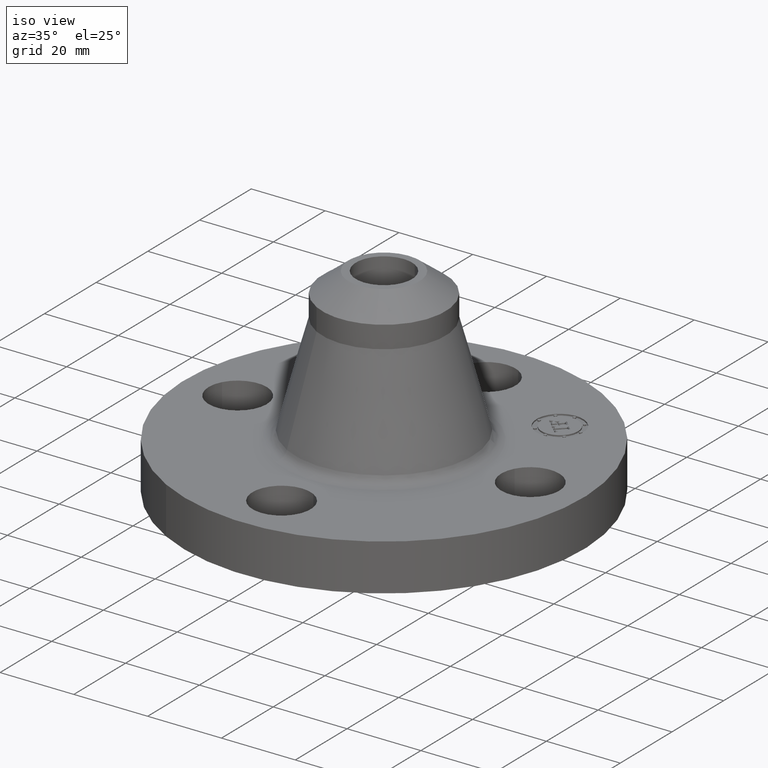
[diagram: clean part render]
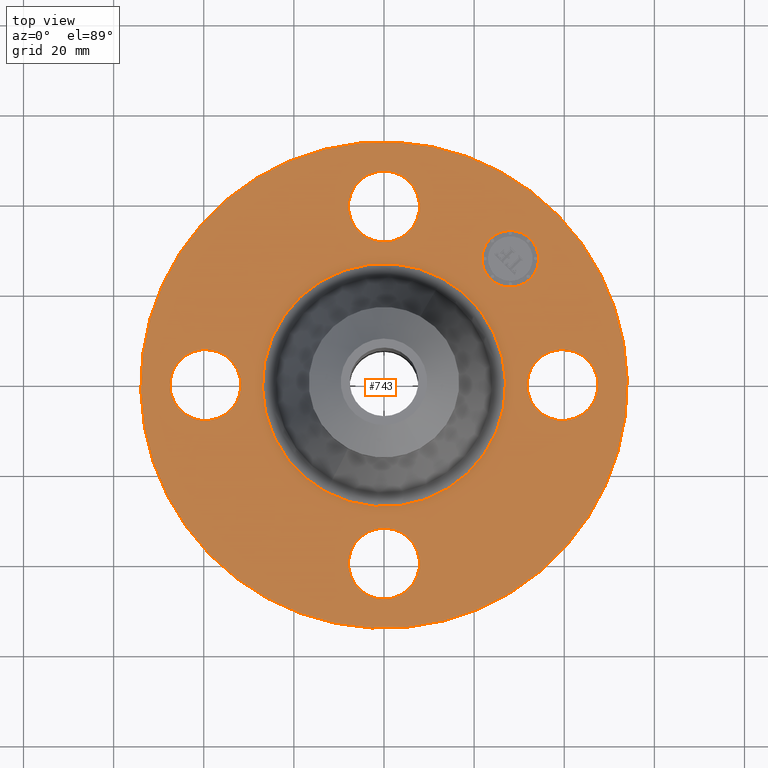
[diagram: tour spotlight — one face highlighted and labeled with its STEP entity id]
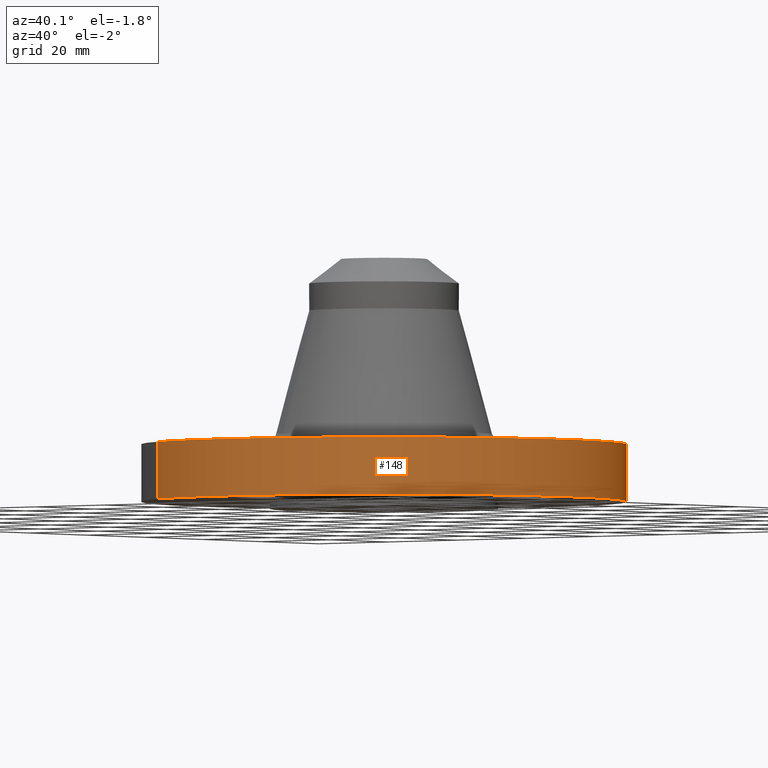
[diagram: tour spotlight — one face highlighted and labeled with its STEP entity id]
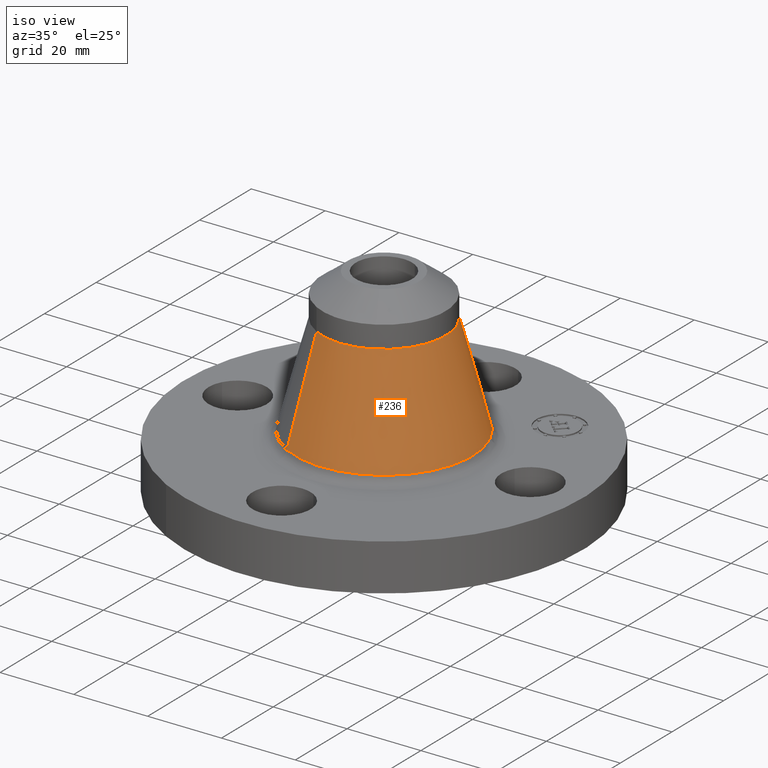
[diagram: tour spotlight — one face highlighted and labeled with its STEP entity id]
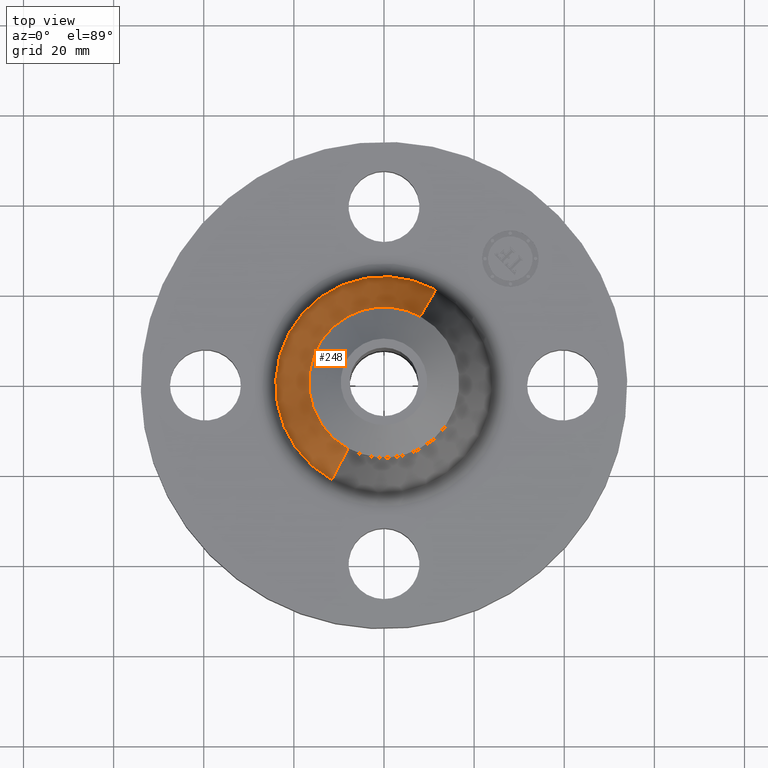
[diagram: tour spotlight — one face highlighted and labeled with its STEP entity id]
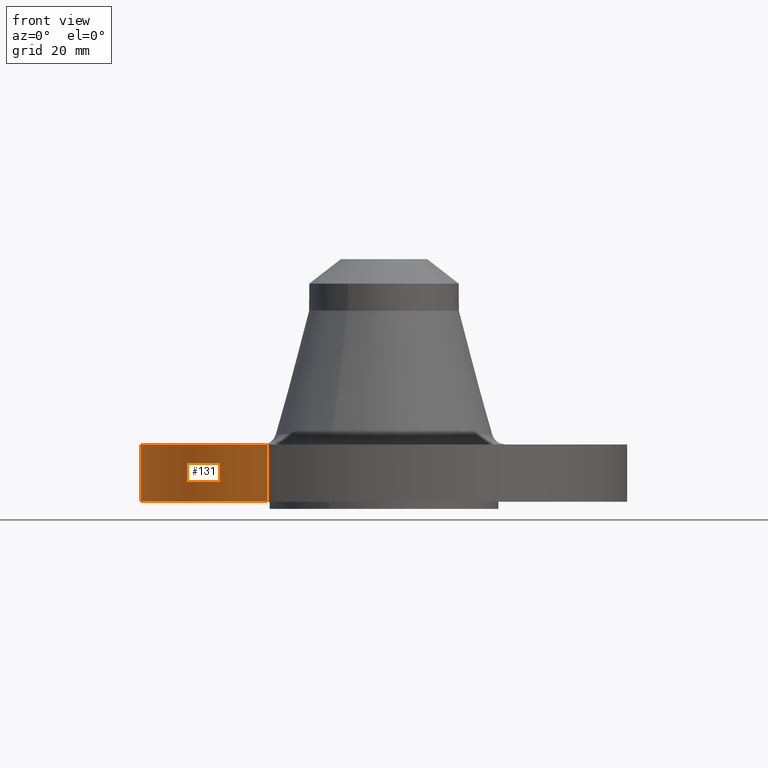
[diagram: tour spotlight — one face highlighted and labeled with its STEP entity id]
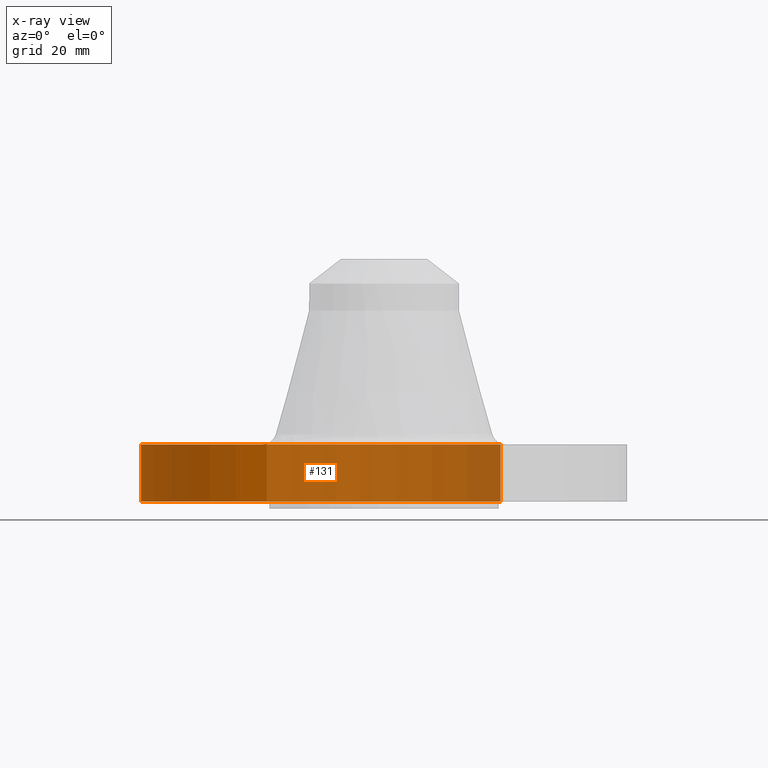
[diagram: x-ray of the same camera — body ghosted, this tour face saturated]
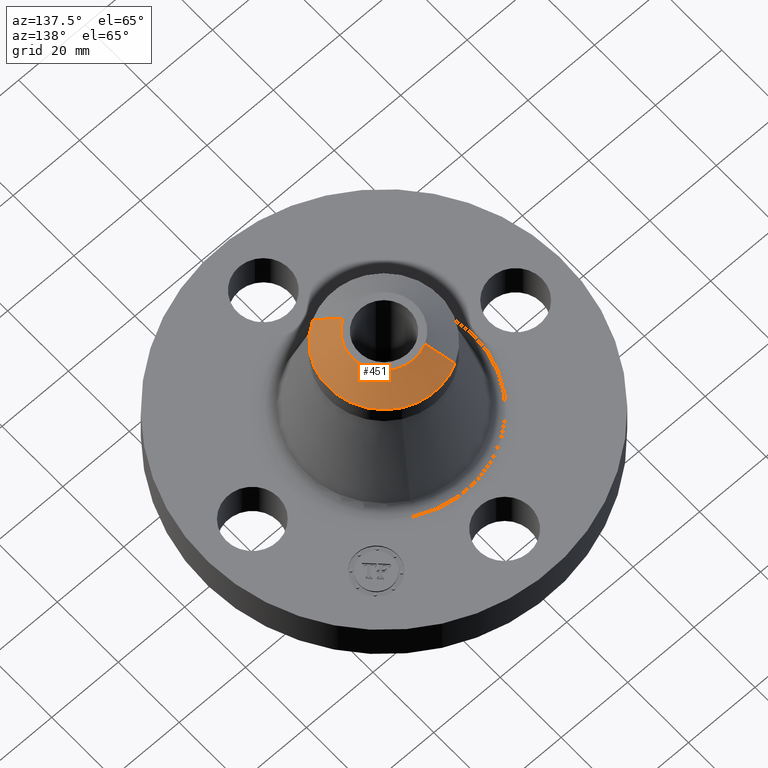
[diagram: tour spotlight — one face highlighted and labeled with its STEP entity id]
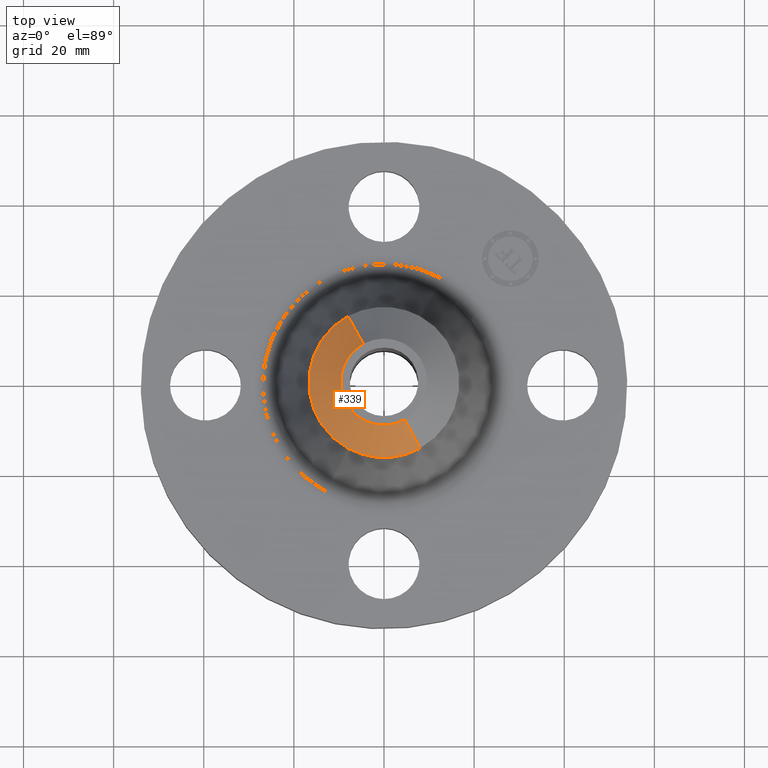
[diagram: tour spotlight — one face highlighted and labeled with its STEP entity id]
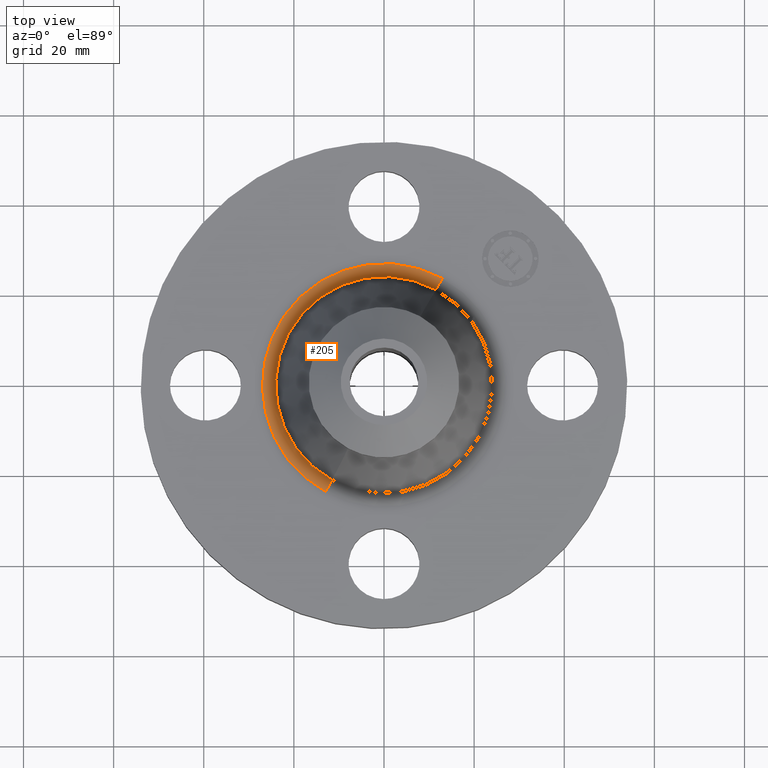
[diagram: tour spotlight — one face highlighted and labeled with its STEP entity id]
A machine part: a face-by-face anatomy tour. The part has 411 B-rep faces; the first image is the clean iso view, then the 8 largest visible faces are spotlighted one at a time (largest first), each with its STEP entity span.

Face 1 — top view, entity #743. In plain terms, the highlighted planar face has unit normal (0, 0, -1).
Definition (entity closure, byte-faithful):
#65=AXIS2_PLACEMENT_3D('Circle Axis2P3D',#63,#64,$) ;
#82=AXIS2_PLACEMENT_3D('Circle Axis2P3D',#80,#81,$) ;
#115=AXIS2_PLACEMENT_3D('Circle Axis2P3D',#113,#114,$) ;
#139=AXIS2_PLACEMENT_3D('Circle Axis2P3D',#137,#138,$) ;
#156=AXIS2_PLACEMENT_3D('Circle Axis2P3D',#154,#155,$) ;
#191=AXIS2_PLACEMENT_3D('Circle Axis2P3D',#189,#190,$) ;
#588=AXIS2_PLACEMENT_3D('Circle Axis2P3D',#586,#587,$) ;
#600=AXIS2_PLACEMENT_3D('Circle Axis2P3D',#598,#599,$) ;
#631=AXIS2_PLACEMENT_3D('Circle Axis2P3D',#629,#630,$) ;
#643=AXIS2_PLACEMENT_3D('Circle Axis2P3D',#641,#642,$) ;
#674=AXIS2_PLACEMENT_3D('Circle Axis2P3D',#672,#673,$) ;
#686=AXIS2_PLACEMENT_3D('Circle Axis2P3D',#684,#685,$) ;
#699=AXIS2_PLACEMENT_3D('Plane Axis2P3D',#696,#697,#698) ;
#727=AXIS2_PLACEMENT_3D('Circle Axis2P3D',#725,#726,$) ;
#736=AXIS2_PLACEMENT_3D('Circle Axis2P3D',#734,#735,$) ;
#46=CARTESIAN_POINT('Vertex',(1.28794940582,0.148621916968,0.500000000002)) ;
#60=CARTESIAN_POINT('Vertex',(1.83205059419,-0.148621916968,0.500000000002)) ;
#63=CARTESIAN_POINT('Axis2P3D Location',(1.56000000001,0.,0.500000000002)) ;
#80=CARTESIAN_POINT('Axis2P3D Location',(1.56000000001,0.,0.500000000002)) ;
#110=CARTESIAN_POINT('Vertex',(-1.01877926954,-1.86486294402,0.500000000002)) ;
#113=CARTESIAN_POINT('Axis2P3D Location',(0.,0.,0.500000000002)) ;
#117=CARTESIAN_POINT('Vertex',(1.01877926954,1.86486294402,0.500000000002)) ;
#137=CARTESIAN_POINT('Axis2P3D Location',(0.,0.,0.500000000002)) ;
#154=CARTESIAN_POINT('Axis2P3D Location',(0.,0.,0.500000000002)) ;
#158=CARTESIAN_POINT('Vertex',(0.509219481615,0.932120008753,0.500000000002)) ;
#160=CARTESIAN_POINT('Vertex',(-0.509219481615,-0.932120008753,0.500000000002)) ;
#189=CARTESIAN_POINT('Axis2P3D Location',(0.,0.,0.500000000002)) ;
#576=CARTESIAN_POINT('Vertex',(-0.148621916968,1.28794940582,0.500000000002)) ;
#583=CARTESIAN_POINT('Vertex',(0.148621916968,1.83205059419,0.500000000002)) ;
#586=CARTESIAN_POINT('Axis2P3D Location',(-2.86567351002E-016,1.56000000001,0.500000000002)) ;
#598=CARTESIAN_POINT('Axis2P3D Location',(-2.86567351002E-016,1.56000000001,0.500000000002)) ;
#619=CARTESIAN_POINT('Vertex',(-1.28794940582,-0.148621916968,0.500000000002)) ;
#626=CARTESIAN_POINT('Vertex',(-1.83205059419,0.148621916968,0.500000000002)) ;
#629=CARTESIAN_POINT('Axis2P3D Location',(-1.56000000001,-1.91044900668E-016,0.500000000002)) ;
#641=CARTESIAN_POINT('Axis2P3D Location',(-1.56000000001,-1.91044900668E-016,0.500000000002)) ;
#662=CARTESIAN_POINT('Vertex',(0.148621916968,-1.28794940582,0.500000000002)) ;
#669=CARTESIAN_POINT('Vertex',(-0.148621916968,-1.83205059419,0.500000000002)) ;
#672=CARTESIAN_POINT('Axis2P3D Location',(-1.84218784217E-016,-1.56000000001,0.500000000002)) ;
#684=CARTESIAN_POINT('Axis2P3D Location',(-1.84218784217E-016,-1.56000000001,0.500000000002)) ;
#696=CARTESIAN_POINT('Axis2P3D Location',(0.,2.12500000001,0.500000000002)) ;
#725=CARTESIAN_POINT('Axis2P3D Location',(1.10308657866,1.10308657866,0.500000000002)) ;
#729=CARTESIAN_POINT('Vertex',(0.928077650311,1.278095507,0.500000000002)) ;
#731=CARTESIAN_POINT('Vertex',(1.278095507,0.928077650311,0.500000000002)) ;
#734=CARTESIAN_POINT('Axis2P3D Location',(1.10308657866,1.10308657866,0.500000000002)) ;
#64=DIRECTION('Axis2P3D Direction',(0.,-0.,-0.0393700787402)) ;
#81=DIRECTION('Axis2P3D Direction',(0.,-0.,-0.0393700787402)) ;
#114=DIRECTION('Axis2P3D Direction',(0.,0.,-0.0393700787402)) ;
#138=DIRECTION('Axis2P3D Direction',(0.,0.,-0.0393700787402)) ;
#155=DIRECTION('Axis2P3D Direction',(0.,0.,-0.0393700787402)) ;
#190=DIRECTION('Axis2P3D Direction',(0.,0.,-0.0393700787402)) ;
#587=DIRECTION('Axis2P3D Direction',(0.,0.,-0.0393700787402)) ;
#599=DIRECTION('Axis2P3D Direction',(0.,0.,-0.0393700787402)) ;
#630=DIRECTION('Axis2P3D Direction',(-0.,0.,-0.0393700787402)) ;
#642=DIRECTION('Axis2P3D Direction',(-0.,0.,-0.0393700787402)) ;
#673=DIRECTION('Axis2P3D Direction',(0.,-0.,-0.0393700787402)) ;
#685=DIRECTION('Axis2P3D Direction',(0.,-0.,-0.0393700787402)) ;
#697=DIRECTION('Axis2P3D Direction',(0.,0.,-0.0393700787402)) ;
#698=DIRECTION('Axis2P3D XDirection',(0.0393700787402,0.,0.)) ;
#726=DIRECTION('Axis2P3D Direction',(0.,0.,-0.0393700787402)) ;
#735=DIRECTION('Axis2P3D Direction',(0.,0.,-0.0393700787402)) ;
#702=ORIENTED_EDGE('',*,*,#141,.F.) ;
#703=ORIENTED_EDGE('',*,*,#119,.F.) ;
#706=ORIENTED_EDGE('',*,*,#67,.T.) ;
#707=ORIENTED_EDGE('',*,*,#84,.T.) ;
#710=ORIENTED_EDGE('',*,*,#193,.T.) ;
#711=ORIENTED_EDGE('',*,*,#162,.T.) ;
#714=ORIENTED_EDGE('',*,*,#688,.T.) ;
#715=ORIENTED_EDGE('',*,*,#676,.T.) ;
#718=ORIENTED_EDGE('',*,*,#645,.T.) ;
#719=ORIENTED_EDGE('',*,*,#633,.T.) ;
#722=ORIENTED_EDGE('',*,*,#602,.T.) ;
#723=ORIENTED_EDGE('',*,*,#590,.T.) ;
#740=ORIENTED_EDGE('',*,*,#733,.T.) ;
#741=ORIENTED_EDGE('',*,*,#738,.T.) ;
#708=FACE_BOUND('',#705,.T.) ;
#712=FACE_BOUND('',#709,.T.) ;
#716=FACE_BOUND('',#713,.T.) ;
#720=FACE_BOUND('',#717,.T.) ;
#724=FACE_BOUND('',#721,.T.) ;
#742=FACE_BOUND('',#739,.T.) ;
#743=ADVANCED_FACE('PartBody',(#704,#708,#712,#716,#720,#724,#742),#700,.F.) ;
#66=CIRCLE('generated circle',#65,0.310000000001) ;
#83=CIRCLE('generated circle',#82,0.310000000001) ;
#116=CIRCLE('generated circle',#115,2.12500000001) ;
#140=CIRCLE('generated circle',#139,2.12500000001) ;
#157=CIRCLE('generated circle',#156,1.06214508951) ;
#192=CIRCLE('generated circle',#191,1.06214508951) ;
#589=CIRCLE('generated circle',#588,0.310000000001) ;
#601=CIRCLE('generated circle',#600,0.310000000001) ;
#632=CIRCLE('generated circle',#631,0.310000000001) ;
#644=CIRCLE('generated circle',#643,0.310000000001) ;
#675=CIRCLE('generated circle',#674,0.310000000001) ;
#687=CIRCLE('generated circle',#686,0.310000000001) ;
#728=CIRCLE('generated circle',#727,0.247500000001) ;
#737=CIRCLE('generated circle',#736,0.247500000001) ;
#67=EDGE_CURVE('',#47,#61,#66,.T.) ;
#84=EDGE_CURVE('',#61,#47,#83,.T.) ;
#119=EDGE_CURVE('',#111,#118,#116,.T.) ;
#141=EDGE_CURVE('',#118,#111,#140,.T.) ;
#162=EDGE_CURVE('',#159,#161,#157,.T.) ;
#193=EDGE_CURVE('',#161,#159,#192,.T.) ;
#590=EDGE_CURVE('',#577,#584,#589,.T.) ;
#602=EDGE_CURVE('',#584,#577,#601,.T.) ;
#633=EDGE_CURVE('',#620,#627,#632,.T.) ;
#645=EDGE_CURVE('',#627,#620,#644,.T.) ;
#676=EDGE_CURVE('',#663,#670,#675,.T.) ;
#688=EDGE_CURVE('',#670,#663,#687,.T.) ;
#733=EDGE_CURVE('',#730,#732,#728,.T.) ;
#738=EDGE_CURVE('',#732,#730,#737,.T.) ;
#701=EDGE_LOOP('',(#702,#703)) ;
#705=EDGE_LOOP('',(#706,#707)) ;
#709=EDGE_LOOP('',(#710,#711)) ;
#713=EDGE_LOOP('',(#714,#715)) ;
#717=EDGE_LOOP('',(#718,#719)) ;
#721=EDGE_LOOP('',(#722,#723)) ;
#739=EDGE_LOOP('',(#740,#741)) ;
#704=FACE_OUTER_BOUND('',#701,.T.) ;
#700=PLANE('',#699) ;
#47=VERTEX_POINT('',#46) ;
#61=VERTEX_POINT('',#60) ;
#111=VERTEX_POINT('',#110) ;
#118=VERTEX_POINT('',#117) ;
#159=VERTEX_POINT('',#158) ;
#161=VERTEX_POINT('',#160) ;
#577=VERTEX_POINT('',#576) ;
#584=VERTEX_POINT('',#583) ;
#620=VERTEX_POINT('',#619) ;
#627=VERTEX_POINT('',#626) ;
#663=VERTEX_POINT('',#662) ;
#670=VERTEX_POINT('',#669) ;
#730=VERTEX_POINT('',#729) ;
#732=VERTEX_POINT('',#731) ;

Face 2 — auxiliary view, entity #148. In plain terms, the highlighted cylindrical surface (partial cylindrical patch) has radius 53.975 mm, axis along (0, 0, -1).
Definition (entity closure, byte-faithful):
#95=AXIS2_PLACEMENT_3D('Cylinder Axis2P3D',#92,#93,#94) ;
#134=AXIS2_PLACEMENT_3D('Circle Axis2P3D',#132,#133,$) ;
#139=AXIS2_PLACEMENT_3D('Circle Axis2P3D',#137,#138,$) ;
#92=CARTESIAN_POINT('Axis2P3D Location',(0.,0.,1.02875)) ;
#101=CARTESIAN_POINT('Vertex',(-1.01877926954,-1.86486294402,1.39870617276E-016)) ;
#103=CARTESIAN_POINT('Vertex',(1.01877926954,1.86486294402,1.39870617276E-016)) ;
#106=CARTESIAN_POINT('Line Origine',(-1.01877926954,-1.86486294402,0.250000000001)) ;
#110=CARTESIAN_POINT('Vertex',(-1.01877926954,-1.86486294402,0.500000000002)) ;
#117=CARTESIAN_POINT('Vertex',(1.01877926954,1.86486294402,0.500000000002)) ;
#120=CARTESIAN_POINT('Line Origine',(1.01877926954,1.86486294402,0.250000000001)) ;
#132=CARTESIAN_POINT('Axis2P3D Location',(0.,0.,1.39870617276E-016)) ;
#137=CARTESIAN_POINT('Axis2P3D Location',(0.,0.,0.500000000002)) ;
#93=DIRECTION('Axis2P3D Direction',(0.,0.,-0.0393700787402)) ;
#94=DIRECTION('Axis2P3D XDirection',(0.0188750212049,0.0345504945626,0.)) ;
#107=DIRECTION('Vector Direction',(0.,0.,-0.0393700787402)) ;
#121=DIRECTION('Vector Direction',(0.,0.,-0.0393700787402)) ;
#133=DIRECTION('Axis2P3D Direction',(0.,0.,-0.0393700787402)) ;
#138=DIRECTION('Axis2P3D Direction',(0.,0.,-0.0393700787402)) ;
#108=VECTOR('Line Direction',#107,0.0393700787402) ;
#122=VECTOR('Line Direction',#121,0.0393700787402) ;
#143=ORIENTED_EDGE('',*,*,#136,.F.) ;
#144=ORIENTED_EDGE('',*,*,#124,.T.) ;
#145=ORIENTED_EDGE('',*,*,#141,.T.) ;
#146=ORIENTED_EDGE('',*,*,#112,.F.) ;
#148=ADVANCED_FACE('PartBody',(#147),#96,.T.) ;
#135=CIRCLE('generated circle',#134,2.12500000001) ;
#140=CIRCLE('generated circle',#139,2.12500000001) ;
#96=CYLINDRICAL_SURFACE('generated cylinder',#95,2.12500000001) ;
#112=EDGE_CURVE('',#102,#111,#109,.F.) ;
#124=EDGE_CURVE('',#104,#118,#123,.F.) ;
#136=EDGE_CURVE('',#104,#102,#135,.T.) ;
#141=EDGE_CURVE('',#118,#111,#140,.T.) ;
#142=EDGE_LOOP('',(#143,#144,#145,#146)) ;
#147=FACE_OUTER_BOUND('',#142,.T.) ;
#109=LINE('Line',#106,#108) ;
#123=LINE('Line',#120,#122) ;
#102=VERTEX_POINT('',#101) ;
#104=VERTEX_POINT('',#103) ;
#111=VERTEX_POINT('',#110) ;
#118=VERTEX_POINT('',#117) ;

Face 3 — iso view, entity #236. In plain terms, the highlighted conical surface has half-angle 14.96 deg.
Definition (entity closure, byte-faithful):
#172=AXIS2_PLACEMENT_3D('Circle Axis2P3D',#170,#171,$) ;
#209=AXIS2_PLACEMENT_3D('Cone Axis2P3D',#206,#207,#208) ;
#220=AXIS2_PLACEMENT_3D('Circle Axis2P3D',#218,#219,$) ;
#167=CARTESIAN_POINT('Vertex',(0.45363847054,0.83037965042,0.589021770642)) ;
#170=CARTESIAN_POINT('Axis2P3D Location',(0.,0.,0.589021770642)) ;
#174=CARTESIAN_POINT('Vertex',(-0.45363847054,-0.83037965042,0.589021770642)) ;
#206=CARTESIAN_POINT('Axis2P3D Location',(0.,0.,1.66949591374)) ;
#211=CARTESIAN_POINT('Line Origine',(0.384430381087,0.703695092433,1.12925884219)) ;
#215=CARTESIAN_POINT('Vertex',(0.315222291634,0.577010534445,1.66949591374)) ;
#218=CARTESIAN_POINT('Axis2P3D Location',(0.,0.,1.66949591374)) ;
#222=CARTESIAN_POINT('Vertex',(-0.315222291634,-0.577010534445,1.66949591374)) ;
#225=CARTESIAN_POINT('Line Origine',(-0.384430381087,-0.703695092433,1.12925884219)) ;
#171=DIRECTION('Axis2P3D Direction',(0.,0.,-0.0393700787402)) ;
#207=DIRECTION('Axis2P3D Direction',(0.,0.,-0.0393700787402)) ;
#208=DIRECTION('Axis2P3D XDirection',(-0.0188750212049,-0.0345504945626,0.)) ;
#212=DIRECTION('Vector Direction',(0.00487262280049,0.00891927620883,-0.0380356038333)) ;
#219=DIRECTION('Axis2P3D Direction',(0.,0.,-0.0393700787402)) ;
#226=DIRECTION('Vector Direction',(-0.00487262280049,-0.00891927620883,-0.0380356038333)) ;
#213=VECTOR('Line Direction',#212,0.0393700787402) ;
#227=VECTOR('Line Direction',#226,0.0393700787402) ;
#231=ORIENTED_EDGE('',*,*,#176,.F.) ;
#232=ORIENTED_EDGE('',*,*,#217,.T.) ;
#233=ORIENTED_EDGE('',*,*,#224,.T.) ;
#234=ORIENTED_EDGE('',*,*,#229,.F.) ;
#236=ADVANCED_FACE('PartBody',(#235),#210,.T.) ;
#173=CIRCLE('generated circle',#172,0.946212569028) ;
#221=CIRCLE('generated circle',#220,0.657500000003) ;
#210=CONICAL_SURFACE('Cone',#209,0.657500000003,0.26110878394) ;
#176=EDGE_CURVE('',#168,#175,#173,.T.) ;
#217=EDGE_CURVE('',#168,#216,#214,.F.) ;
#224=EDGE_CURVE('',#216,#223,#221,.T.) ;
#229=EDGE_CURVE('',#175,#223,#228,.F.) ;
#230=EDGE_LOOP('',(#231,#232,#233,#234)) ;
#235=FACE_OUTER_BOUND('',#230,.T.) ;
#214=LINE('Line',#211,#213) ;
#228=LINE('Line',#225,#227) ;
#168=VERTEX_POINT('',#167) ;
#175=VERTEX_POINT('',#174) ;
#216=VERTEX_POINT('',#215) ;
#223=VERTEX_POINT('',#222) ;

Face 4 — top view, entity #248. In plain terms, the highlighted conical surface has half-angle 14.96 deg.
Definition (entity closure, byte-faithful):
#196=AXIS2_PLACEMENT_3D('Circle Axis2P3D',#194,#195,$) ;
#209=AXIS2_PLACEMENT_3D('Cone Axis2P3D',#206,#207,#208) ;
#239=AXIS2_PLACEMENT_3D('Circle Axis2P3D',#237,#238,$) ;
#167=CARTESIAN_POINT('Vertex',(0.45363847054,0.83037965042,0.589021770642)) ;
#174=CARTESIAN_POINT('Vertex',(-0.45363847054,-0.83037965042,0.589021770642)) ;
#194=CARTESIAN_POINT('Axis2P3D Location',(0.,0.,0.589021770642)) ;
#206=CARTESIAN_POINT('Axis2P3D Location',(0.,0.,1.66949591374)) ;
#211=CARTESIAN_POINT('Line Origine',(0.384430381087,0.703695092433,1.12925884219)) ;
#215=CARTESIAN_POINT('Vertex',(0.315222291634,0.577010534445,1.66949591374)) ;
#222=CARTESIAN_POINT('Vertex',(-0.315222291634,-0.577010534445,1.66949591374)) ;
#225=CARTESIAN_POINT('Line Origine',(-0.384430381087,-0.703695092433,1.12925884219)) ;
#237=CARTESIAN_POINT('Axis2P3D Location',(0.,0.,1.66949591374)) ;
#195=DIRECTION('Axis2P3D Direction',(0.,0.,-0.0393700787402)) ;
#207=DIRECTION('Axis2P3D Direction',(0.,0.,-0.0393700787402)) ;
#208=DIRECTION('Axis2P3D XDirection',(-0.0188750212049,-0.0345504945626,0.)) ;
#212=DIRECTION('Vector Direction',(0.00487262280049,0.00891927620883,-0.0380356038333)) ;
#226=DIRECTION('Vector Direction',(-0.00487262280049,-0.00891927620883,-0.0380356038333)) ;
#238=DIRECTION('Axis2P3D Direction',(0.,0.,-0.0393700787402)) ;
#213=VECTOR('Line Direction',#212,0.0393700787402) ;
#227=VECTOR('Line Direction',#226,0.0393700787402) ;
#243=ORIENTED_EDGE('',*,*,#198,.F.) ;
#244=ORIENTED_EDGE('',*,*,#229,.T.) ;
#245=ORIENTED_EDGE('',*,*,#241,.T.) ;
#246=ORIENTED_EDGE('',*,*,#217,.F.) ;
#248=ADVANCED_FACE('PartBody',(#247),#210,.T.) ;
#197=CIRCLE('generated circle',#196,0.946212569028) ;
#240=CIRCLE('generated circle',#239,0.657500000003) ;
#210=CONICAL_SURFACE('Cone',#209,0.657500000003,0.26110878394) ;
#198=EDGE_CURVE('',#175,#168,#197,.T.) ;
#217=EDGE_CURVE('',#168,#216,#214,.F.) ;
#229=EDGE_CURVE('',#175,#223,#228,.F.) ;
#241=EDGE_CURVE('',#223,#216,#240,.T.) ;
#242=EDGE_LOOP('',(#243,#244,#245,#246)) ;
#247=FACE_OUTER_BOUND('',#242,.T.) ;
#214=LINE('Line',#211,#213) ;
#228=LINE('Line',#225,#227) ;
#168=VERTEX_POINT('',#167) ;
#175=VERTEX_POINT('',#174) ;
#216=VERTEX_POINT('',#215) ;
#223=VERTEX_POINT('',#222) ;

Face 5 — front view, entity #131. An x-ray twin of the same camera follows (body ghosted, this face saturated) — the face is partly hidden behind the body. In plain terms, the highlighted cylindrical surface (partial cylindrical patch) has radius 53.975 mm, axis along (0, 0, -1).
Definition (entity closure, byte-faithful):
#95=AXIS2_PLACEMENT_3D('Cylinder Axis2P3D',#92,#93,#94) ;
#99=AXIS2_PLACEMENT_3D('Circle Axis2P3D',#97,#98,$) ;
#115=AXIS2_PLACEMENT_3D('Circle Axis2P3D',#113,#114,$) ;
#92=CARTESIAN_POINT('Axis2P3D Location',(0.,0.,1.02875)) ;
#97=CARTESIAN_POINT('Axis2P3D Location',(0.,0.,1.39870617276E-016)) ;
#101=CARTESIAN_POINT('Vertex',(-1.01877926954,-1.86486294402,1.39870617276E-016)) ;
#103=CARTESIAN_POINT('Vertex',(1.01877926954,1.86486294402,1.39870617276E-016)) ;
#106=CARTESIAN_POINT('Line Origine',(-1.01877926954,-1.86486294402,0.250000000001)) ;
#110=CARTESIAN_POINT('Vertex',(-1.01877926954,-1.86486294402,0.500000000002)) ;
#113=CARTESIAN_POINT('Axis2P3D Location',(0.,0.,0.500000000002)) ;
#117=CARTESIAN_POINT('Vertex',(1.01877926954,1.86486294402,0.500000000002)) ;
#120=CARTESIAN_POINT('Line Origine',(1.01877926954,1.86486294402,0.250000000001)) ;
#93=DIRECTION('Axis2P3D Direction',(0.,0.,-0.0393700787402)) ;
#94=DIRECTION('Axis2P3D XDirection',(0.0188750212049,0.0345504945626,0.)) ;
#98=DIRECTION('Axis2P3D Direction',(0.,0.,-0.0393700787402)) ;
#107=DIRECTION('Vector Direction',(0.,0.,-0.0393700787402)) ;
#114=DIRECTION('Axis2P3D Direction',(0.,0.,-0.0393700787402)) ;
#121=DIRECTION('Vector Direction',(0.,0.,-0.0393700787402)) ;
#108=VECTOR('Line Direction',#107,0.0393700787402) ;
#122=VECTOR('Line Direction',#121,0.0393700787402) ;
#126=ORIENTED_EDGE('',*,*,#105,.F.) ;
#127=ORIENTED_EDGE('',*,*,#112,.T.) ;
#128=ORIENTED_EDGE('',*,*,#119,.T.) ;
#129=ORIENTED_EDGE('',*,*,#124,.F.) ;
#131=ADVANCED_FACE('PartBody',(#130),#96,.T.) ;
#100=CIRCLE('generated circle',#99,2.12500000001) ;
#116=CIRCLE('generated circle',#115,2.12500000001) ;
#96=CYLINDRICAL_SURFACE('generated cylinder',#95,2.12500000001) ;
#105=EDGE_CURVE('',#102,#104,#100,.T.) ;
#112=EDGE_CURVE('',#102,#111,#109,.F.) ;
#119=EDGE_CURVE('',#111,#118,#116,.T.) ;
#124=EDGE_CURVE('',#104,#118,#123,.F.) ;
#125=EDGE_LOOP('',(#126,#127,#128,#129)) ;
#130=FACE_OUTER_BOUND('',#125,.T.) ;
#109=LINE('Line',#106,#108) ;
#123=LINE('Line',#120,#122) ;
#102=VERTEX_POINT('',#101) ;
#104=VERTEX_POINT('',#103) ;
#111=VERTEX_POINT('',#110) ;
#118=VERTEX_POINT('',#117) ;

Face 6 — auxiliary view, entity #451. In plain terms, the highlighted conical surface has half-angle 52.5 deg.
Definition (entity closure, byte-faithful):
#270=AXIS2_PLACEMENT_3D('Circle Axis2P3D',#268,#269,$) ;
#297=AXIS2_PLACEMENT_3D('Circle Axis2P3D',#295,#296,$) ;
#311=AXIS2_PLACEMENT_3D('Cone Axis2P3D',#308,#309,#310) ;
#432=AXIS2_PLACEMENT_3D('Circle Axis2P3D',#430,#431,$) ;
#265=CARTESIAN_POINT('Vertex',(0.315222291634,0.577010534445,1.90571638618)) ;
#268=CARTESIAN_POINT('Axis2P3D Location',(0.,0.,1.90571638618)) ;
#272=CARTESIAN_POINT('Vertex',(0.315222291634,-0.577010534445,1.90571638618)) ;
#292=CARTESIAN_POINT('Vertex',(-0.315222291634,0.577010534445,1.90571638618)) ;
#295=CARTESIAN_POINT('Axis2P3D Location',(0.,0.,1.90571638618)) ;
#308=CARTESIAN_POINT('Axis2P3D Location',(0.,0.,2.12000000001)) ;
#313=CARTESIAN_POINT('Line Origine',(0.248280141428,-0.454473750429,2.0128581931)) ;
#317=CARTESIAN_POINT('Vertex',(0.181337991222,-0.331936966412,2.12000000001)) ;
#324=CARTESIAN_POINT('Vertex',(-0.181337991222,0.331936966412,2.12000000001)) ;
#327=CARTESIAN_POINT('Line Origine',(-0.248280141428,0.454473750429,2.0128581931)) ;
#430=CARTESIAN_POINT('Axis2P3D Location',(0.,0.,2.12000000001)) ;
#269=DIRECTION('Axis2P3D Direction',(0.,0.,-0.0393700787402)) ;
#296=DIRECTION('Axis2P3D Direction',(0.,0.,-0.0393700787402)) ;
#309=DIRECTION('Axis2P3D Direction',(-0.,-0.,-0.0393700787402)) ;
#310=DIRECTION('Axis2P3D XDirection',(-0.0188750212049,0.0345504945626,0.)) ;
#314=DIRECTION('Vector Direction',(0.014974561121,-0.02741075027,-0.023966985394)) ;
#328=DIRECTION('Vector Direction',(-0.014974561121,0.02741075027,-0.023966985394)) ;
#431=DIRECTION('Axis2P3D Direction',(0.,0.,-0.0393700787402)) ;
#315=VECTOR('Line Direction',#314,0.0393700787402) ;
#329=VECTOR('Line Direction',#328,0.0393700787402) ;
#445=ORIENTED_EDGE('',*,*,#331,.F.) ;
#446=ORIENTED_EDGE('',*,*,#434,.F.) ;
#447=ORIENTED_EDGE('',*,*,#319,.T.) ;
#448=ORIENTED_EDGE('',*,*,#274,.T.) ;
#449=ORIENTED_EDGE('',*,*,#299,.F.) ;
#451=ADVANCED_FACE('PartBody',(#450),#312,.T.) ;
#271=CIRCLE('generated circle',#270,0.657500000003) ;
#298=CIRCLE('generated circle',#297,0.657500000003) ;
#433=CIRCLE('generated circle',#432,0.378240157482) ;
#312=CONICAL_SURFACE('Cone',#311,0.378240157481,0.916297857297) ;
#274=EDGE_CURVE('',#273,#266,#271,.F.) ;
#299=EDGE_CURVE('',#293,#266,#298,.T.) ;
#319=EDGE_CURVE('',#318,#273,#316,.T.) ;
#331=EDGE_CURVE('',#325,#293,#330,.T.) ;
#434=EDGE_CURVE('',#318,#325,#433,.F.) ;
#444=EDGE_LOOP('',(#445,#446,#447,#448,#449)) ;
#450=FACE_OUTER_BOUND('',#444,.T.) ;
#316=LINE('Line',#313,#315) ;
#330=LINE('Line',#327,#329) ;
#266=VERTEX_POINT('',#265) ;
#273=VERTEX_POINT('',#272) ;
#293=VERTEX_POINT('',#292) ;
#318=VERTEX_POINT('',#317) ;
#325=VERTEX_POINT('',#324) ;

Face 7 — top view, entity #339. In plain terms, the highlighted conical surface has half-angle 52.5 deg.
Definition (entity closure, byte-faithful):
#277=AXIS2_PLACEMENT_3D('Circle Axis2P3D',#275,#276,$) ;
#290=AXIS2_PLACEMENT_3D('Circle Axis2P3D',#288,#289,$) ;
#311=AXIS2_PLACEMENT_3D('Cone Axis2P3D',#308,#309,#310) ;
#322=AXIS2_PLACEMENT_3D('Circle Axis2P3D',#320,#321,$) ;
#258=CARTESIAN_POINT('Vertex',(-0.315222291634,-0.577010534445,1.90571638618)) ;
#272=CARTESIAN_POINT('Vertex',(0.315222291634,-0.577010534445,1.90571638618)) ;
#275=CARTESIAN_POINT('Axis2P3D Location',(0.,0.,1.90571638618)) ;
#288=CARTESIAN_POINT('Axis2P3D Location',(0.,0.,1.90571638618)) ;
#292=CARTESIAN_POINT('Vertex',(-0.315222291634,0.577010534445,1.90571638618)) ;
#308=CARTESIAN_POINT('Axis2P3D Location',(0.,0.,2.12000000001)) ;
#313=CARTESIAN_POINT('Line Origine',(0.248280141428,-0.454473750429,2.0128581931)) ;
#317=CARTESIAN_POINT('Vertex',(0.181337991222,-0.331936966412,2.12000000001)) ;
#320=CARTESIAN_POINT('Axis2P3D Location',(0.,0.,2.12000000001)) ;
#324=CARTESIAN_POINT('Vertex',(-0.181337991222,0.331936966412,2.12000000001)) ;
#327=CARTESIAN_POINT('Line Origine',(-0.248280141428,0.454473750429,2.0128581931)) ;
#276=DIRECTION('Axis2P3D Direction',(0.,0.,-0.0393700787402)) ;
#289=DIRECTION('Axis2P3D Direction',(0.,0.,-0.0393700787402)) ;
#309=DIRECTION('Axis2P3D Direction',(-0.,-0.,-0.0393700787402)) ;
#310=DIRECTION('Axis2P3D XDirection',(-0.0188750212049,0.0345504945626,0.)) ;
#314=DIRECTION('Vector Direction',(0.014974561121,-0.02741075027,-0.023966985394)) ;
#321=DIRECTION('Axis2P3D Direction',(0.,0.,-0.0393700787402)) ;
#328=DIRECTION('Vector Direction',(-0.014974561121,0.02741075027,-0.023966985394)) ;
#315=VECTOR('Line Direction',#314,0.0393700787402) ;
#329=VECTOR('Line Direction',#328,0.0393700787402) ;
#333=ORIENTED_EDGE('',*,*,#319,.F.) ;
#334=ORIENTED_EDGE('',*,*,#326,.F.) ;
#335=ORIENTED_EDGE('',*,*,#331,.T.) ;
#336=ORIENTED_EDGE('',*,*,#294,.T.) ;
#337=ORIENTED_EDGE('',*,*,#279,.F.) ;
#339=ADVANCED_FACE('PartBody',(#338),#312,.T.) ;
#278=CIRCLE('generated circle',#277,0.657500000003) ;
#291=CIRCLE('generated circle',#290,0.657500000003) ;
#323=CIRCLE('generated circle',#322,0.378240157481) ;
#312=CONICAL_SURFACE('Cone',#311,0.378240157481,0.916297857297) ;
#279=EDGE_CURVE('',#273,#259,#278,.T.) ;
#294=EDGE_CURVE('',#293,#259,#291,.F.) ;
#319=EDGE_CURVE('',#318,#273,#316,.T.) ;
#326=EDGE_CURVE('',#325,#318,#323,.F.) ;
#331=EDGE_CURVE('',#325,#293,#330,.T.) ;
#332=EDGE_LOOP('',(#333,#334,#335,#336,#337)) ;
#338=FACE_OUTER_BOUND('',#332,.T.) ;
#316=LINE('Line',#313,#315) ;
#330=LINE('Line',#327,#329) ;
#259=VERTEX_POINT('',#258) ;
#273=VERTEX_POINT('',#272) ;
#293=VERTEX_POINT('',#292) ;
#318=VERTEX_POINT('',#317) ;
#325=VERTEX_POINT('',#324) ;

Face 8 — top view, entity #205. In plain terms, the highlighted toroidal blend (fillet) surface has major radius 26.9785 mm and minor (blend) radius 3.048 mm.
Definition (entity closure, byte-faithful):
#152=AXIS2_PLACEMENT_3D('Torus Axis2P3D',#149,#150,#151) ;
#165=AXIS2_PLACEMENT_3D('Circle Axis2P3D',#163,#164,$) ;
#179=AXIS2_PLACEMENT_3D('Circle Axis2P3D',#177,#178,$) ;
#191=AXIS2_PLACEMENT_3D('Circle Axis2P3D',#189,#190,$) ;
#196=AXIS2_PLACEMENT_3D('Circle Axis2P3D',#194,#195,$) ;
#149=CARTESIAN_POINT('Axis2P3D Location',(0.,0.,0.620000000002)) ;
#158=CARTESIAN_POINT('Vertex',(0.509219481615,0.932120008753,0.500000000002)) ;
#160=CARTESIAN_POINT('Vertex',(-0.509219481615,-0.932120008753,0.500000000002)) ;
#163=CARTESIAN_POINT('Axis2P3D Location',(0.509219481615,0.932120008753,0.620000000002)) ;
#167=CARTESIAN_POINT('Vertex',(0.45363847054,0.83037965042,0.589021770642)) ;
#174=CARTESIAN_POINT('Vertex',(-0.45363847054,-0.83037965042,0.589021770642)) ;
#177=CARTESIAN_POINT('Axis2P3D Location',(-0.509219481615,-0.932120008753,0.620000000002)) ;
#189=CARTESIAN_POINT('Axis2P3D Location',(0.,0.,0.500000000002)) ;
#194=CARTESIAN_POINT('Axis2P3D Location',(0.,0.,0.589021770642)) ;
#150=DIRECTION('Axis2P3D Direction',(0.,0.,-0.0393700787402)) ;
#151=DIRECTION('Axis2P3D XDirection',(-0.0188750212049,-0.0345504945626,0.)) ;
#164=DIRECTION('Axis2P3D Direction',(-0.0345504945626,0.0188750212049,0.)) ;
#178=DIRECTION('Axis2P3D Direction',(0.0345504945626,-0.0188750212049,0.)) ;
#190=DIRECTION('Axis2P3D Direction',(0.,0.,-0.0393700787402)) ;
#195=DIRECTION('Axis2P3D Direction',(0.,0.,-0.0393700787402)) ;
#200=ORIENTED_EDGE('',*,*,#193,.F.) ;
#201=ORIENTED_EDGE('',*,*,#181,.T.) ;
#202=ORIENTED_EDGE('',*,*,#198,.T.) ;
#203=ORIENTED_EDGE('',*,*,#169,.F.) ;
#205=ADVANCED_FACE('PartBody',(#204),#153,.F.) ;
#166=CIRCLE('generated circle',#165,0.12) ;
#180=CIRCLE('generated circle',#179,0.12) ;
#192=CIRCLE('generated circle',#191,1.06214508951) ;
#197=CIRCLE('generated circle',#196,0.946212569028) ;
#153=TOROIDAL_SURFACE('homeo Torus',#152,1.06214508951,0.12) ;
#169=EDGE_CURVE('',#159,#168,#166,.T.) ;
#181=EDGE_CURVE('',#161,#175,#180,.T.) ;
#193=EDGE_CURVE('',#161,#159,#192,.T.) ;
#198=EDGE_CURVE('',#175,#168,#197,.T.) ;
#199=EDGE_LOOP('',(#200,#201,#202,#203)) ;
#204=FACE_OUTER_BOUND('',#199,.T.) ;
#159=VERTEX_POINT('',#158) ;
#161=VERTEX_POINT('',#160) ;
#168=VERTEX_POINT('',#167) ;
#175=VERTEX_POINT('',#174) ;